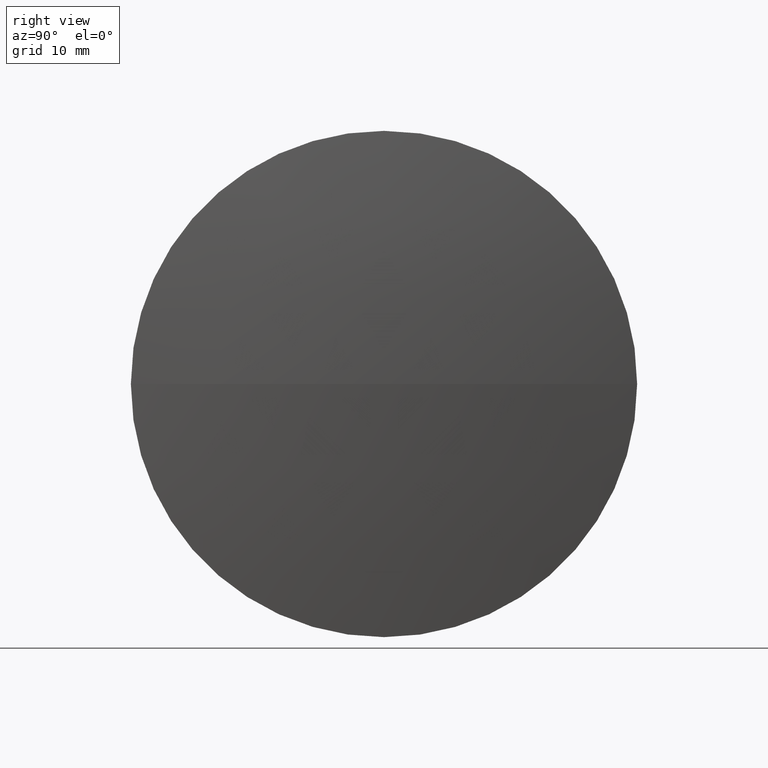
[diagram: clean part render]
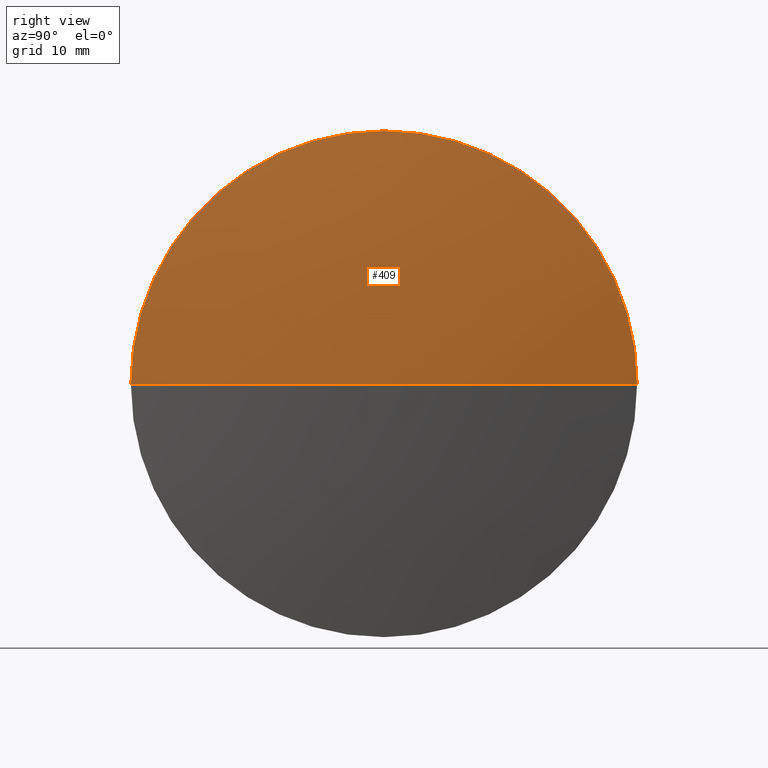
[diagram: same view with one face highlighted and labeled with its STEP entity id]
A machine part, right view. The second image highlights one B-rep face of the part: STEP entity #409.
In plain terms, the highlighted spherical surface has radius 181.7 mm.
Its self-contained STEP definition (entity closure, byte-faithful):
#27 = CIRCLE ( 'NONE', #408, 181.6999999999999886 ) ;
#40 = DIRECTION ( 'NONE',  ( -1.000000000000000000, -0.000000000000000000, -0.000000000000000000 ) ) ;
#47 = AXIS2_PLACEMENT_3D ( 'NONE', #161, #189, #403 ) ;
#51 = CARTESIAN_POINT ( 'NONE',  ( -73.83507646784927658, 39.01514532454268647, -3.110602869834275682E-15 ) ) ;
#60 = CARTESIAN_POINT ( 'NONE',  ( -73.83507646784927658, 89.81514532454266941, 0.000000000000000000 ) ) ;
#82 = DIRECTION ( 'NONE',  ( -0.000000000000000000, 0.000000000000000000, 1.000000000000000000 ) ) ;
#83 = AXIS2_PLACEMENT_3D ( 'NONE', #172, #170, #95 ) ;
#84 = CARTESIAN_POINT ( 'NONE',  ( -72.05097348642850363, 64.41514532454269215, 0.000000000000000000 ) ) ;
#95 = DIRECTION ( 'NONE',  ( 0.000000000000000000, 1.000000000000000000, 1.224646799147353207E-16 ) ) ;
#96 = VERTEX_POINT ( 'NONE', #51 ) ;
#112 = CIRCLE ( 'NONE', #47, 25.39999999999999858 ) ;
#122 = AXIS2_PLACEMENT_3D ( 'NONE', #321, #40, #391 ) ;
#139 = ORIENTED_EDGE ( 'NONE', *, *, #429, .F. ) ;
#148 = VERTEX_POINT ( 'NONE', #84 ) ;
#150 = EDGE_CURVE ( 'NONE', #182, #312, #112, .T. ) ;
#161 = CARTESIAN_POINT ( 'NONE',  ( -73.83507646784929079, 64.41514532454267794, 0.000000000000000000 ) ) ;
#170 = DIRECTION ( 'NONE',  ( 0.000000000000000000, 1.224646799147353207E-16, -1.000000000000000000 ) ) ;
#172 = CARTESIAN_POINT ( 'NONE',  ( -253.7509734864285065, 64.41514532454267794, 0.000000000000000000 ) ) ;
#174 = ORIENTED_EDGE ( 'NONE', *, *, #258, .T. ) ;
#182 = VERTEX_POINT ( 'NONE', #435 ) ;
#189 = DIRECTION ( 'NONE',  ( -1.000000000000000000, -0.000000000000000000, -0.000000000000000000 ) ) ;
#216 = CARTESIAN_POINT ( 'NONE',  ( -253.7509734864285065, 64.41514532454267794, 0.000000000000000000 ) ) ;
#250 = DIRECTION ( 'NONE',  ( -0.000000000000000000, 0.000000000000000000, -1.000000000000000000 ) ) ;
#251 = ORIENTED_EDGE ( 'NONE', *, *, #336, .F. ) ;
#258 = EDGE_CURVE ( 'NONE', #148, #312, #27, .T. ) ;
#259 = EDGE_LOOP ( 'NONE', ( #251, #174, #427, #139 ) ) ;
#291 = CIRCLE ( 'NONE', #83, 181.6999999999999886 ) ;
#308 = FACE_OUTER_BOUND ( 'NONE', #259, .T. ) ;
#312 = VERTEX_POINT ( 'NONE', #60 ) ;
#321 = CARTESIAN_POINT ( 'NONE',  ( -73.83507646784929079, 64.41514532454267794, 0.000000000000000000 ) ) ;
#326 = DIRECTION ( 'NONE',  ( 1.000000000000000000, 0.000000000000000000, 0.000000000000000000 ) ) ;
#336 = EDGE_CURVE ( 'NONE', #148, #96, #291, .T. ) ;
#348 = CARTESIAN_POINT ( 'NONE',  ( -253.7509734864285065, 64.41514532454267794, 0.000000000000000000 ) ) ;
#352 = DIRECTION ( 'NONE',  ( 0.000000000000000000, 1.000000000000000000, 0.000000000000000000 ) ) ;
#355 = SPHERICAL_SURFACE ( 'NONE', #414, 181.6999999999999886 ) ;
#373 = CIRCLE ( 'NONE', #122, 25.39999999999999858 ) ;
#391 = DIRECTION ( 'NONE',  ( 0.000000000000000000, 0.000000000000000000, 1.000000000000000000 ) ) ;
#403 = DIRECTION ( 'NONE',  ( 0.000000000000000000, 0.000000000000000000, 1.000000000000000000 ) ) ;
#408 = AXIS2_PLACEMENT_3D ( 'NONE', #216, #82, #326 ) ;
#409 = ADVANCED_FACE ( 'NONE', ( #308 ), #355, .T. ) ;
#414 = AXIS2_PLACEMENT_3D ( 'NONE', #348, #250, #352 ) ;
#427 = ORIENTED_EDGE ( 'NONE', *, *, #150, .F. ) ;
#429 = EDGE_CURVE ( 'NONE', #96, #182, #373, .T. ) ;
#435 = CARTESIAN_POINT ( 'NONE',  ( -73.83507646784929079, 64.41514532454267794, 25.39999999999999858 ) ) ;